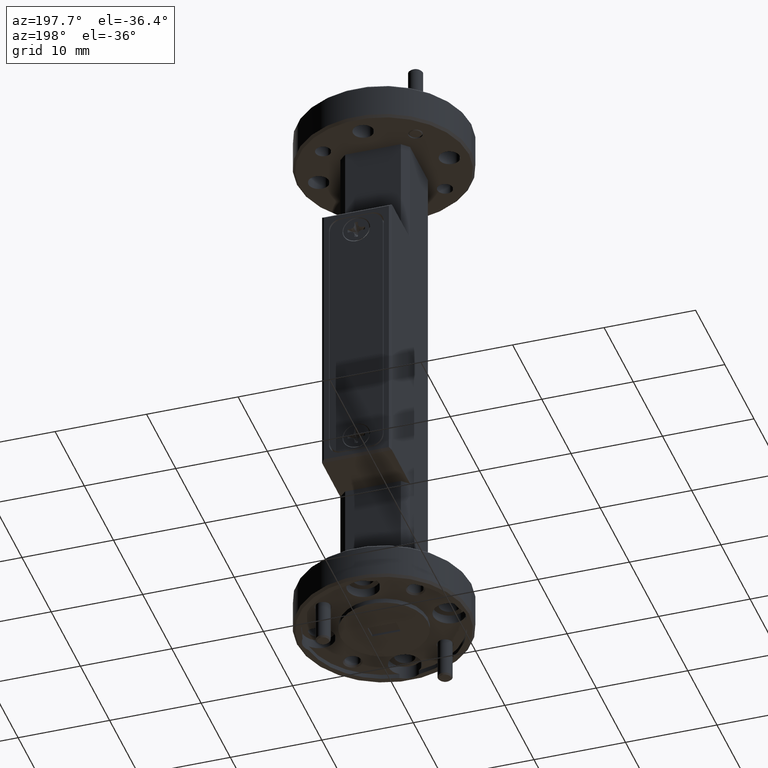
[diagram: clean part render]
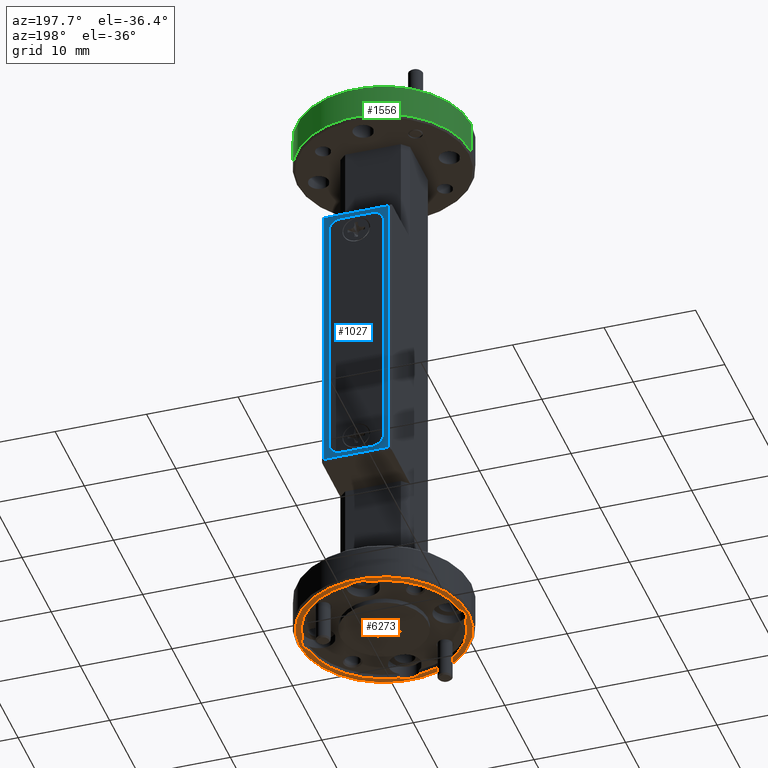
[diagram: same view with three faces highlighted in distinct colors, each labeled with its STEP entity id]
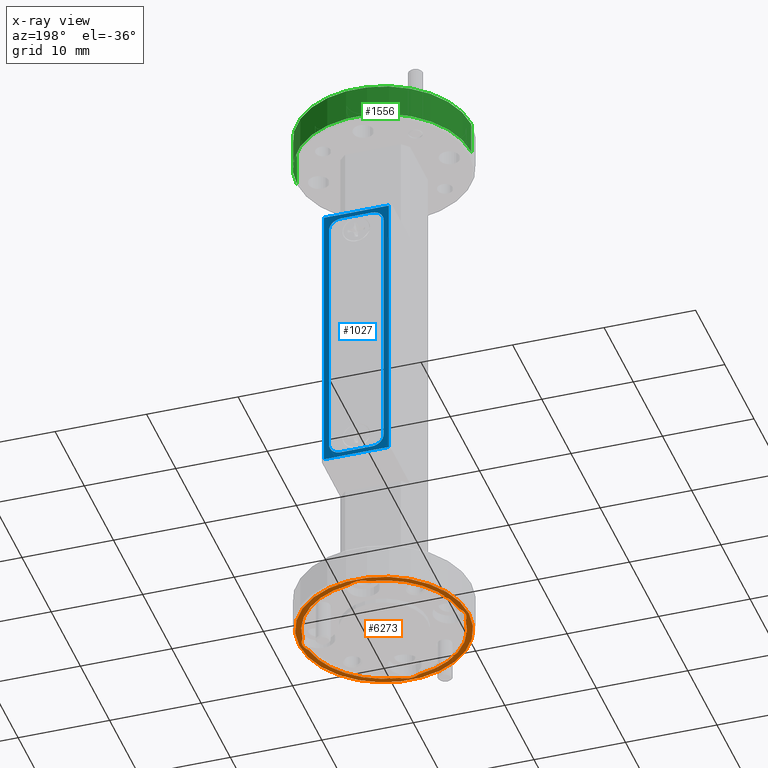
[diagram: x-ray of the same camera — body ghosted, the three highlighted faces saturated]
A machine part, auxiliary view with three faces highlighted in distinct colors.
The next image is the same camera in x-ray (body ghosted, the three faces saturated) — at least one of them is partly hidden behind the body in this view.
Their STEP definitions:

[orange] entity #6273 — the highlighted planar face has unit normal (-0, 0, 1).
#72 = CARTESIAN_POINT ( 'NONE',  ( -0.3374250000000000305, 0.04176564826505155953, -1.250000000000000000 ) ) ;
#96 = ORIENTED_EDGE ( 'NONE', *, *, #2330, .T. ) ;
#221 = ORIENTED_EDGE ( 'NONE', *, *, #4521, .T. ) ;
#333 = VERTEX_POINT ( 'NONE', #4804 ) ;
#392 = CIRCLE ( 'NONE', #2235, 0.07000000000000000666 ) ;
#433 = DIRECTION ( 'NONE',  ( -1.000000000000000000, 0.000000000000000000, 0.000000000000000000 ) ) ;
#447 = EDGE_CURVE ( 'NONE', #2958, #333, #6798, .T. ) ;
#501 = DIRECTION ( 'NONE',  ( 1.000000000000000000, 0.000000000000000000, 0.000000000000000000 ) ) ;
#507 = FACE_OUTER_BOUND ( 'NONE', #3700, .T. ) ;
#551 = PLANE ( 'NONE',  #4214 ) ;
#728 = DIRECTION ( 'NONE',  ( -1.000000000000000000, 0.000000000000000000, 0.000000000000000000 ) ) ;
#785 = CIRCLE ( 'NONE', #4238, 0.07000000000000000666 ) ;
#798 = AXIS2_PLACEMENT_3D ( 'NONE', #2292, #5156, #2178 ) ;
#934 = CARTESIAN_POINT ( 'NONE',  ( 0.000000000000000000, -0.2812500000000000555, -1.250000000000000000 ) ) ;
#1265 = CARTESIAN_POINT ( 'NONE',  ( -0.3650000000000003242, 4.531193156845209775E-17, -1.250000000000000000 ) ) ;
#1279 = CARTESIAN_POINT ( 'NONE',  ( 0.3512500000000000622, 8.572527594031471957E-18, -1.250000000000000000 ) ) ;
#1385 = DIRECTION ( 'NONE',  ( 1.000000000000000000, 0.000000000000000000, 0.000000000000000000 ) ) ;
#1457 = ORIENTED_EDGE ( 'NONE', *, *, #447, .F. ) ;
#1459 = DIRECTION ( 'NONE',  ( 0.000000000000000000, 0.000000000000000000, -1.000000000000000000 ) ) ;
#1475 = DIRECTION ( 'NONE',  ( -0.000000000000000000, -0.000000000000000000, -1.000000000000000000 ) ) ;
#1530 = AXIS2_PLACEMENT_3D ( 'NONE', #3524, #2289, #6305 ) ;
#1722 = VERTEX_POINT ( 'NONE', #6914 ) ;
#1743 = CARTESIAN_POINT ( 'NONE',  ( 0.04176564826505140687, -0.3374250000000001415, -1.250000000000000000 ) ) ;
#1824 = DIRECTION ( 'NONE',  ( 1.000000000000000000, 0.000000000000000000, 0.000000000000000000 ) ) ;
#1928 = VERTEX_POINT ( 'NONE', #1279 ) ;
#1945 = EDGE_CURVE ( 'NONE', #3249, #2675, #7500, .T. ) ;
#2062 = CARTESIAN_POINT ( 'NONE',  ( 0.000000000000000000, 0.2812500000000000555, -1.250000000000000000 ) ) ;
#2166 = CARTESIAN_POINT ( 'NONE',  ( 0.000000000000000000, 0.000000000000000000, -1.250000000000000000 ) ) ;
#2178 = DIRECTION ( 'NONE',  ( -1.000000000000000000, 0.000000000000000000, 0.000000000000000000 ) ) ;
#2235 = AXIS2_PLACEMENT_3D ( 'NONE', #2062, #3181, #6698 ) ;
#2289 = DIRECTION ( 'NONE',  ( 0.000000000000000000, 0.000000000000000000, -1.000000000000000000 ) ) ;
#2292 = CARTESIAN_POINT ( 'NONE',  ( 0.000000000000000000, 0.000000000000000000, -1.250000000000000000 ) ) ;
#2330 = EDGE_CURVE ( 'NONE', #4009, #1722, #4767, .T. ) ;
#2343 = DIRECTION ( 'NONE',  ( -1.000000000000000000, 0.000000000000000000, 0.000000000000000000 ) ) ;
#2380 = AXIS2_PLACEMENT_3D ( 'NONE', #3363, #5726, #433 ) ;
#2398 = DIRECTION ( 'NONE',  ( 0.000000000000000000, -0.000000000000000000, -1.000000000000000000 ) ) ;
#2624 = AXIS2_PLACEMENT_3D ( 'NONE', #6019, #1459, #728 ) ;
#2665 = ORIENTED_EDGE ( 'NONE', *, *, #6522, .F. ) ;
#2674 = EDGE_CURVE ( 'NONE', #333, #3249, #7540, .T. ) ;
#2675 = VERTEX_POINT ( 'NONE', #72 ) ;
#2715 = CARTESIAN_POINT ( 'NONE',  ( -0.04176564826505137912, 0.3374250000000001415, -1.250000000000000000 ) ) ;
#2718 = DIRECTION ( 'NONE',  ( -1.000000000000000000, 0.000000000000000000, 0.000000000000000000 ) ) ;
#2744 = CIRCLE ( 'NONE', #6448, 0.07000000000000000666 ) ;
#2901 = EDGE_CURVE ( 'NONE', #2675, #4338, #5947, .T. ) ;
#2958 = VERTEX_POINT ( 'NONE', #3232 ) ;
#3019 = DIRECTION ( 'NONE',  ( -0.000000000000000000, -0.000000000000000000, -1.000000000000000000 ) ) ;
#3042 = VERTEX_POINT ( 'NONE', #6931 ) ;
#3134 = DIRECTION ( 'NONE',  ( 0.000000000000000000, -0.000000000000000000, -1.000000000000000000 ) ) ;
#3181 = DIRECTION ( 'NONE',  ( -0.000000000000000000, -0.000000000000000000, -1.000000000000000000 ) ) ;
#3232 = CARTESIAN_POINT ( 'NONE',  ( -0.04176564826505133055, -0.3374250000000001415, -1.250000000000000000 ) ) ;
#3249 = VERTEX_POINT ( 'NONE', #4896 ) ;
#3261 = CARTESIAN_POINT ( 'NONE',  ( 0.2812500000000000555, 0.000000000000000000, -1.250000000000000000 ) ) ;
#3284 = ORIENTED_EDGE ( 'NONE', *, *, #5679, .F. ) ;
#3363 = CARTESIAN_POINT ( 'NONE',  ( 0.2812500000000000555, 0.000000000000000000, -1.250000000000000000 ) ) ;
#3481 = EDGE_CURVE ( 'NONE', #1928, #5774, #5711, .T. ) ;
#3521 = AXIS2_PLACEMENT_3D ( 'NONE', #3707, #3134, #1385 ) ;
#3524 = CARTESIAN_POINT ( 'NONE',  ( 0.000000000000000000, 0.000000000000000000, -1.250000000000000000 ) ) ;
#3599 = AXIS2_PLACEMENT_3D ( 'NONE', #4157, #6516, #2343 ) ;
#3604 = ORIENTED_EDGE ( 'NONE', *, *, #4155, .F. ) ;
#3700 = EDGE_LOOP ( 'NONE', ( #221, #96 ) ) ;
#3707 = CARTESIAN_POINT ( 'NONE',  ( 0.000000000000000000, 0.000000000000000000, -1.250000000000000000 ) ) ;
#3778 = CARTESIAN_POINT ( 'NONE',  ( 0.04176564826505155953, 0.3374250000000000305, -1.250000000000000000 ) ) ;
#3969 = CIRCLE ( 'NONE', #7059, 0.3650000000000003242 ) ;
#4009 = VERTEX_POINT ( 'NONE', #1265 ) ;
#4057 = DIRECTION ( 'NONE',  ( -0.000000000000000000, 0.000000000000000000, 1.000000000000000000 ) ) ;
#4077 = ORIENTED_EDGE ( 'NONE', *, *, #2901, .F. ) ;
#4155 = EDGE_CURVE ( 'NONE', #5774, #7554, #6962, .T. ) ;
#4157 = CARTESIAN_POINT ( 'NONE',  ( -0.2812500000000000555, 0.000000000000000000, -1.250000000000000000 ) ) ;
#4214 = AXIS2_PLACEMENT_3D ( 'NONE', #6460, #4057, #1824 ) ;
#4238 = AXIS2_PLACEMENT_3D ( 'NONE', #3261, #5576, #2718 ) ;
#4338 = VERTEX_POINT ( 'NONE', #2715 ) ;
#4521 = EDGE_CURVE ( 'NONE', #1722, #4009, #3969, .T. ) ;
#4525 = DIRECTION ( 'NONE',  ( -1.000000000000000000, 0.000000000000000000, 0.000000000000000000 ) ) ;
#4767 = CIRCLE ( 'NONE', #3521, 0.3650000000000003242 ) ;
#4804 = CARTESIAN_POINT ( 'NONE',  ( -0.3374250000000000860, -0.04176564826505142769, -1.250000000000000000 ) ) ;
#4826 = AXIS2_PLACEMENT_3D ( 'NONE', #2166, #4957, #4525 ) ;
#4896 = CARTESIAN_POINT ( 'NONE',  ( -0.3512500000000000622, 0.000000000000000000, -1.250000000000000000 ) ) ;
#4957 = DIRECTION ( 'NONE',  ( 0.000000000000000000, 0.000000000000000000, -1.000000000000000000 ) ) ;
#5011 = VERTEX_POINT ( 'NONE', #3778 ) ;
#5119 = EDGE_LOOP ( 'NONE', ( #3284, #5370, #4077, #5596, #6139, #1457, #2665, #3604, #7228, #5463 ) ) ;
#5141 = DIRECTION ( 'NONE',  ( -1.000000000000000000, 0.000000000000000000, 0.000000000000000000 ) ) ;
#5156 = DIRECTION ( 'NONE',  ( 0.000000000000000000, 0.000000000000000000, -1.000000000000000000 ) ) ;
#5265 = CARTESIAN_POINT ( 'NONE',  ( 0.3374250000000001415, -0.04176564826505133748, -1.250000000000000000 ) ) ;
#5370 = ORIENTED_EDGE ( 'NONE', *, *, #7192, .F. ) ;
#5375 = DIRECTION ( 'NONE',  ( -1.000000000000000000, 0.000000000000000000, 0.000000000000000000 ) ) ;
#5463 = ORIENTED_EDGE ( 'NONE', *, *, #5579, .F. ) ;
#5576 = DIRECTION ( 'NONE',  ( -0.000000000000000000, -0.000000000000000000, -1.000000000000000000 ) ) ;
#5579 = EDGE_CURVE ( 'NONE', #3042, #1928, #785, .T. ) ;
#5596 = ORIENTED_EDGE ( 'NONE', *, *, #1945, .F. ) ;
#5679 = EDGE_CURVE ( 'NONE', #5011, #3042, #6463, .T. ) ;
#5711 = CIRCLE ( 'NONE', #2380, 0.07000000000000000666 ) ;
#5726 = DIRECTION ( 'NONE',  ( -0.000000000000000000, -0.000000000000000000, -1.000000000000000000 ) ) ;
#5774 = VERTEX_POINT ( 'NONE', #5265 ) ;
#5779 = AXIS2_PLACEMENT_3D ( 'NONE', #5948, #3019, #5375 ) ;
#5947 = CIRCLE ( 'NONE', #2624, 0.3399999999999999689 ) ;
#5948 = CARTESIAN_POINT ( 'NONE',  ( -0.2812500000000000555, 0.000000000000000000, -1.250000000000000000 ) ) ;
#6019 = CARTESIAN_POINT ( 'NONE',  ( 0.000000000000000000, 0.000000000000000000, -1.250000000000000000 ) ) ;
#6139 = ORIENTED_EDGE ( 'NONE', *, *, #2674, .F. ) ;
#6273 = ADVANCED_FACE ( 'NONE', ( #507, #6496 ), #551, .F. ) ;
#6305 = DIRECTION ( 'NONE',  ( -1.000000000000000000, 0.000000000000000000, 0.000000000000000000 ) ) ;
#6448 = AXIS2_PLACEMENT_3D ( 'NONE', #934, #1475, #5141 ) ;
#6460 = CARTESIAN_POINT ( 'NONE',  ( 0.000000000000000000, 0.000000000000000000, -1.250000000000000000 ) ) ;
#6463 = CIRCLE ( 'NONE', #1530, 0.3399999999999999689 ) ;
#6496 = FACE_BOUND ( 'NONE', #5119, .T. ) ;
#6516 = DIRECTION ( 'NONE',  ( -0.000000000000000000, -0.000000000000000000, -1.000000000000000000 ) ) ;
#6522 = EDGE_CURVE ( 'NONE', #7554, #2958, #2744, .T. ) ;
#6698 = DIRECTION ( 'NONE',  ( -1.000000000000000000, 0.000000000000000000, 0.000000000000000000 ) ) ;
#6798 = CIRCLE ( 'NONE', #4826, 0.3399999999999999689 ) ;
#6914 = CARTESIAN_POINT ( 'NONE',  ( 0.3650000000000003242, 0.000000000000000000, -1.250000000000000000 ) ) ;
#6931 = CARTESIAN_POINT ( 'NONE',  ( 0.3374250000000001415, 0.04176564826505139993, -1.250000000000000000 ) ) ;
#6962 = CIRCLE ( 'NONE', #798, 0.3399999999999999689 ) ;
#7059 = AXIS2_PLACEMENT_3D ( 'NONE', #7068, #2398, #501 ) ;
#7068 = CARTESIAN_POINT ( 'NONE',  ( 0.000000000000000000, 0.000000000000000000, -1.250000000000000000 ) ) ;
#7192 = EDGE_CURVE ( 'NONE', #4338, #5011, #392, .T. ) ;
#7228 = ORIENTED_EDGE ( 'NONE', *, *, #3481, .F. ) ;
#7500 = CIRCLE ( 'NONE', #5779, 0.07000000000000000666 ) ;
#7540 = CIRCLE ( 'NONE', #3599, 0.07000000000000000666 ) ;
#7554 = VERTEX_POINT ( 'NONE', #1743 ) ;

[blue] entity #1027 — the highlighted planar face has unit normal (0, -1, 0).
#170 = CIRCLE ( 'NONE', #655, 0.05000000000000000971 ) ;
#225 = VERTEX_POINT ( 'NONE', #4059 ) ;
#354 = ORIENTED_EDGE ( 'NONE', *, *, #2565, .F. ) ;
#439 = CARTESIAN_POINT ( 'NONE',  ( -0.1175000000000000211, 0.3749999999999999445, -0.5449999999999998179 ) ) ;
#476 = CIRCLE ( 'NONE', #3208, 0.05000000000000007910 ) ;
#517 = LINE ( 'NONE', #7585, #2360 ) ;
#534 = LINE ( 'NONE', #7597, #5453 ) ;
#655 = AXIS2_PLACEMENT_3D ( 'NONE', #6178, #2112, #2081 ) ;
#739 = LINE ( 'NONE', #3093, #1048 ) ;
#850 = DIRECTION ( 'NONE',  ( 0.000000000000000000, 0.000000000000000000, 1.000000000000000000 ) ) ;
#865 = DIRECTION ( 'NONE',  ( 0.000000000000000000, 1.000000000000000000, 0.000000000000000000 ) ) ;
#882 = EDGE_CURVE ( 'NONE', #3529, #7335, #1905, .T. ) ;
#1027 = ADVANCED_FACE ( 'NONE', ( #2844, #5752 ), #2813, .F. ) ;
#1048 = VECTOR ( 'NONE', #6724, 39.37007874015748143 ) ;
#1208 = EDGE_CURVE ( 'NONE', #1566, #7516, #2106, .T. ) ;
#1273 = LINE ( 'NONE', #5445, #5458 ) ;
#1286 = EDGE_CURVE ( 'NONE', #225, #5163, #476, .T. ) ;
#1419 = CARTESIAN_POINT ( 'NONE',  ( 0.1174999999999999101, 0.3749999999999999445, -0.5449999999999999289 ) ) ;
#1566 = VERTEX_POINT ( 'NONE', #1984 ) ;
#1598 = ORIENTED_EDGE ( 'NONE', *, *, #4784, .F. ) ;
#1645 = EDGE_LOOP ( 'NONE', ( #3202, #3517, #3667, #1598, #354, #7366, #5446, #7551 ) ) ;
#1823 = ORIENTED_EDGE ( 'NONE', *, *, #6998, .T. ) ;
#1831 = CARTESIAN_POINT ( 'NONE',  ( -0.1399999999999999856, 0.3749999999999999445, 0.6149999999999998801 ) ) ;
#1905 = CIRCLE ( 'NONE', #2022, 0.05000000000000000971 ) ;
#1984 = CARTESIAN_POINT ( 'NONE',  ( 0.1399999999999996803, 0.3749999999999999445, 0.6149999999999998801 ) ) ;
#2022 = AXIS2_PLACEMENT_3D ( 'NONE', #4363, #5027, #850 ) ;
#2076 = DIRECTION ( 'NONE',  ( 0.000000000000000000, 1.000000000000000000, 0.000000000000000000 ) ) ;
#2081 = DIRECTION ( 'NONE',  ( 0.000000000000000000, 0.000000000000000000, -1.000000000000000000 ) ) ;
#2106 = LINE ( 'NONE', #4905, #3931 ) ;
#2112 = DIRECTION ( 'NONE',  ( 0.000000000000000000, 1.000000000000000000, -0.000000000000000000 ) ) ;
#2192 = ORIENTED_EDGE ( 'NONE', *, *, #5789, .T. ) ;
#2360 = VECTOR ( 'NONE', #7010, 39.37007874015748143 ) ;
#2364 = CARTESIAN_POINT ( 'NONE',  ( 0.1500000000000001055, 0.3749999999999999445, 0.6149999999999998801 ) ) ;
#2559 = AXIS2_PLACEMENT_3D ( 'NONE', #3423, #6398, #5169 ) ;
#2565 = EDGE_CURVE ( 'NONE', #5163, #2840, #2779, .T. ) ;
#2730 = EDGE_CURVE ( 'NONE', #6527, #3529, #534, .T. ) ;
#2743 = ORIENTED_EDGE ( 'NONE', *, *, #1208, .T. ) ;
#2779 = LINE ( 'NONE', #6902, #4217 ) ;
#2813 = PLANE ( 'NONE',  #2559 ) ;
#2840 = VERTEX_POINT ( 'NONE', #1419 ) ;
#2844 = FACE_OUTER_BOUND ( 'NONE', #4551, .T. ) ;
#2876 = DIRECTION ( 'NONE',  ( 1.000000000000000000, 0.000000000000000000, 5.058977766044935830E-16 ) ) ;
#2982 = DIRECTION ( 'NONE',  ( 1.000000000000000000, 0.000000000000000000, 0.000000000000000000 ) ) ;
#3064 = CARTESIAN_POINT ( 'NONE',  ( 0.1399999999999996803, 0.3749999999999999445, -0.6149999999999998801 ) ) ;
#3093 = CARTESIAN_POINT ( 'NONE',  ( -0.1175000000000000072, 0.3749999999999999445, -0.5449999999999999289 ) ) ;
#3102 = DIRECTION ( 'NONE',  ( 0.000000000000000000, 0.000000000000000000, 1.000000000000000000 ) ) ;
#3202 = ORIENTED_EDGE ( 'NONE', *, *, #3703, .F. ) ;
#3208 = AXIS2_PLACEMENT_3D ( 'NONE', #5518, #2076, #5595 ) ;
#3228 = CIRCLE ( 'NONE', #4699, 0.05000000000000000971 ) ;
#3423 = CARTESIAN_POINT ( 'NONE',  ( 0.1500000000000001055, 0.3749999999999999445, 0.6250000000000000000 ) ) ;
#3450 = CARTESIAN_POINT ( 'NONE',  ( -0.06749999999999989342, 0.3749999999999999445, 0.5949999999999999734 ) ) ;
#3517 = ORIENTED_EDGE ( 'NONE', *, *, #882, .F. ) ;
#3529 = VERTEX_POINT ( 'NONE', #7072 ) ;
#3667 = ORIENTED_EDGE ( 'NONE', *, *, #2730, .F. ) ;
#3703 = EDGE_CURVE ( 'NONE', #7335, #7593, #739, .T. ) ;
#3731 = ORIENTED_EDGE ( 'NONE', *, *, #4619, .T. ) ;
#3830 = VERTEX_POINT ( 'NONE', #5058 ) ;
#3838 = CARTESIAN_POINT ( 'NONE',  ( -0.06749999999999989342, 0.3749999999999999445, 0.5450000000000000400 ) ) ;
#3897 = CARTESIAN_POINT ( 'NONE',  ( -0.06749999999999989342, 0.3749999999999999445, 0.5949999999999999734 ) ) ;
#3931 = VECTOR ( 'NONE', #6213, 39.37007874015748143 ) ;
#4059 = CARTESIAN_POINT ( 'NONE',  ( 0.06750000000000001832, 0.3749999999999999445, 0.5950000000000000844 ) ) ;
#4101 = LINE ( 'NONE', #2364, #5589 ) ;
#4195 = DIRECTION ( 'NONE',  ( -1.000000000000000000, -0.000000000000000000, -0.000000000000000000 ) ) ;
#4217 = VECTOR ( 'NONE', #5132, 39.37007874015748143 ) ;
#4291 = VERTEX_POINT ( 'NONE', #1831 ) ;
#4363 = CARTESIAN_POINT ( 'NONE',  ( -0.06750000000000001832, 0.3749999999999999445, -0.5449999999999999289 ) ) ;
#4551 = EDGE_LOOP ( 'NONE', ( #2743, #1823, #3731, #2192 ) ) ;
#4619 = EDGE_CURVE ( 'NONE', #3830, #4291, #1273, .T. ) ;
#4699 = AXIS2_PLACEMENT_3D ( 'NONE', #3838, #865, #3102 ) ;
#4784 = EDGE_CURVE ( 'NONE', #2840, #6527, #170, .T. ) ;
#4905 = CARTESIAN_POINT ( 'NONE',  ( 0.1399999999999996803, 0.3749999999999999445, 0.6250000000000000000 ) ) ;
#5016 = CARTESIAN_POINT ( 'NONE',  ( 0.1175000000000000488, 0.3749999999999999445, 0.5450000000000000400 ) ) ;
#5027 = DIRECTION ( 'NONE',  ( 0.000000000000000000, 1.000000000000000000, 0.000000000000000000 ) ) ;
#5058 = CARTESIAN_POINT ( 'NONE',  ( -0.1399999999999999856, 0.3749999999999999445, -0.6149999999999998801 ) ) ;
#5132 = DIRECTION ( 'NONE',  ( -1.253141281497368589E-16, -0.000000000000000000, -1.000000000000000000 ) ) ;
#5163 = VERTEX_POINT ( 'NONE', #5016 ) ;
#5169 = DIRECTION ( 'NONE',  ( 0.000000000000000000, -0.000000000000000000, -1.000000000000000000 ) ) ;
#5283 = VERTEX_POINT ( 'NONE', #3450 ) ;
#5410 = DIRECTION ( 'NONE',  ( 0.000000000000000000, 0.000000000000000000, 1.000000000000000000 ) ) ;
#5445 = CARTESIAN_POINT ( 'NONE',  ( -0.1399999999999999856, 0.3749999999999999445, 0.6250000000000000000 ) ) ;
#5446 = ORIENTED_EDGE ( 'NONE', *, *, #6979, .F. ) ;
#5453 = VECTOR ( 'NONE', #4195, 39.37007874015748143 ) ;
#5458 = VECTOR ( 'NONE', #5410, 39.37007874015748143 ) ;
#5518 = CARTESIAN_POINT ( 'NONE',  ( 0.06750000000000001832, 0.3749999999999999445, 0.5450000000000000400 ) ) ;
#5589 = VECTOR ( 'NONE', #2982, 39.37007874015748143 ) ;
#5595 = DIRECTION ( 'NONE',  ( 0.000000000000000000, 0.000000000000000000, 1.000000000000000000 ) ) ;
#5752 = FACE_BOUND ( 'NONE', #1645, .T. ) ;
#5789 = EDGE_CURVE ( 'NONE', #4291, #1566, #4101, .T. ) ;
#6178 = CARTESIAN_POINT ( 'NONE',  ( 0.06749999999999987954, 0.3749999999999999445, -0.5449999999999999289 ) ) ;
#6213 = DIRECTION ( 'NONE',  ( 0.000000000000000000, 0.000000000000000000, -1.000000000000000000 ) ) ;
#6398 = DIRECTION ( 'NONE',  ( 0.000000000000000000, -1.000000000000000000, 0.000000000000000000 ) ) ;
#6426 = VECTOR ( 'NONE', #2876, 39.37007874015748143 ) ;
#6527 = VERTEX_POINT ( 'NONE', #6841 ) ;
#6724 = DIRECTION ( 'NONE',  ( 1.253141281497368589E-16, 0.000000000000000000, 1.000000000000000000 ) ) ;
#6841 = CARTESIAN_POINT ( 'NONE',  ( 0.06749999999999987954, 0.3749999999999999445, -0.5949999999999999734 ) ) ;
#6902 = CARTESIAN_POINT ( 'NONE',  ( 0.1174999999999999101, 0.3749999999999999445, -0.5449999999999999289 ) ) ;
#6979 = EDGE_CURVE ( 'NONE', #5283, #225, #7447, .T. ) ;
#6998 = EDGE_CURVE ( 'NONE', #7516, #3830, #517, .T. ) ;
#7010 = DIRECTION ( 'NONE',  ( -1.000000000000000000, 0.000000000000000000, 0.000000000000000000 ) ) ;
#7072 = CARTESIAN_POINT ( 'NONE',  ( -0.06750000000000001832, 0.3749999999999999445, -0.5949999999999999734 ) ) ;
#7233 = EDGE_CURVE ( 'NONE', #7593, #5283, #3228, .T. ) ;
#7335 = VERTEX_POINT ( 'NONE', #439 ) ;
#7350 = CARTESIAN_POINT ( 'NONE',  ( -0.1174999999999998962, 0.3749999999999999445, 0.5450000000000000400 ) ) ;
#7366 = ORIENTED_EDGE ( 'NONE', *, *, #1286, .F. ) ;
#7447 = LINE ( 'NONE', #3897, #6426 ) ;
#7516 = VERTEX_POINT ( 'NONE', #3064 ) ;
#7551 = ORIENTED_EDGE ( 'NONE', *, *, #7233, .F. ) ;
#7585 = CARTESIAN_POINT ( 'NONE',  ( -0.1500000000000001055, 0.3749999999999999445, -0.6149999999999998801 ) ) ;
#7593 = VERTEX_POINT ( 'NONE', #7350 ) ;
#7597 = CARTESIAN_POINT ( 'NONE',  ( -0.06750000000000001832, 0.3749999999999999445, -0.5949999999999999734 ) ) ;

[green] entity #1556 — the highlighted cylindrical surface (partial cylindrical patch) has radius 9.525 mm, axis along (0, 0, 1).
#359 = CARTESIAN_POINT ( 'NONE',  ( 0.000000000000000000, 0.000000000000000000, 1.240000000000000657 ) ) ;
#652 = CARTESIAN_POINT ( 'NONE',  ( -0.3750000000000000555, 4.592425496802575451E-17, 1.090000000000000080 ) ) ;
#687 = VECTOR ( 'NONE', #4696, 39.37007874015748143 ) ;
#845 = CIRCLE ( 'NONE', #6771, 0.3750000000000000555 ) ;
#906 = AXIS2_PLACEMENT_3D ( 'NONE', #2792, #5145, #1407 ) ;
#1334 = FACE_OUTER_BOUND ( 'NONE', #2682, .T. ) ;
#1407 = DIRECTION ( 'NONE',  ( 1.000000000000000000, 0.000000000000000000, 0.000000000000000000 ) ) ;
#1556 = ADVANCED_FACE ( 'NONE', ( #1334 ), #4487, .T. ) ;
#1894 = CARTESIAN_POINT ( 'NONE',  ( -0.3750000000000000555, 4.592425496802575451E-17, 1.240000000000000657 ) ) ;
#1915 = CARTESIAN_POINT ( 'NONE',  ( 0.000000000000000000, 0.000000000000000000, 1.099999999999999645 ) ) ;
#2090 = EDGE_CURVE ( 'NONE', #6848, #4969, #845, .T. ) ;
#2138 = AXIS2_PLACEMENT_3D ( 'NONE', #1915, #2570, #6040 ) ;
#2165 = DIRECTION ( 'NONE',  ( 1.000000000000000000, 0.000000000000000000, 0.000000000000000000 ) ) ;
#2189 = CARTESIAN_POINT ( 'NONE',  ( -0.3750000000000000555, 4.592425496802575451E-17, 1.099999999999999645 ) ) ;
#2489 = VERTEX_POINT ( 'NONE', #2189 ) ;
#2570 = DIRECTION ( 'NONE',  ( -0.000000000000000000, -0.000000000000000000, 1.000000000000000000 ) ) ;
#2574 = ORIENTED_EDGE ( 'NONE', *, *, #4327, .F. ) ;
#2682 = EDGE_LOOP ( 'NONE', ( #7113, #5080, #7033, #2574 ) ) ;
#2761 = CIRCLE ( 'NONE', #2138, 0.3750000000000000555 ) ;
#2792 = CARTESIAN_POINT ( 'NONE',  ( 0.000000000000000000, 0.000000000000000000, 1.090000000000000080 ) ) ;
#2985 = VECTOR ( 'NONE', #3147, 39.37007874015748143 ) ;
#3147 = DIRECTION ( 'NONE',  ( 0.000000000000000000, 0.000000000000000000, 1.000000000000000000 ) ) ;
#3923 = EDGE_CURVE ( 'NONE', #2489, #6848, #4121, .T. ) ;
#4121 = LINE ( 'NONE', #652, #687 ) ;
#4327 = EDGE_CURVE ( 'NONE', #6045, #4969, #4450, .T. ) ;
#4450 = LINE ( 'NONE', #6695, #2985 ) ;
#4487 = CYLINDRICAL_SURFACE ( 'NONE', #906, 0.3750000000000000555 ) ;
#4622 = CARTESIAN_POINT ( 'NONE',  ( 0.3750000000000000555, 0.000000000000000000, 1.240000000000000657 ) ) ;
#4696 = DIRECTION ( 'NONE',  ( 0.000000000000000000, 0.000000000000000000, 1.000000000000000000 ) ) ;
#4969 = VERTEX_POINT ( 'NONE', #4622 ) ;
#5080 = ORIENTED_EDGE ( 'NONE', *, *, #3923, .T. ) ;
#5145 = DIRECTION ( 'NONE',  ( 0.000000000000000000, 0.000000000000000000, 1.000000000000000000 ) ) ;
#5219 = DIRECTION ( 'NONE',  ( 0.000000000000000000, 0.000000000000000000, -1.000000000000000000 ) ) ;
#5493 = EDGE_CURVE ( 'NONE', #6045, #2489, #2761, .T. ) ;
#6040 = DIRECTION ( 'NONE',  ( 1.000000000000000000, 0.000000000000000000, 0.000000000000000000 ) ) ;
#6045 = VERTEX_POINT ( 'NONE', #6075 ) ;
#6075 = CARTESIAN_POINT ( 'NONE',  ( 0.3750000000000000555, 0.000000000000000000, 1.099999999999999645 ) ) ;
#6695 = CARTESIAN_POINT ( 'NONE',  ( 0.3750000000000000555, 0.000000000000000000, 1.090000000000000080 ) ) ;
#6771 = AXIS2_PLACEMENT_3D ( 'NONE', #359, #5219, #2165 ) ;
#6848 = VERTEX_POINT ( 'NONE', #1894 ) ;
#7033 = ORIENTED_EDGE ( 'NONE', *, *, #2090, .T. ) ;
#7113 = ORIENTED_EDGE ( 'NONE', *, *, #5493, .T. ) ;